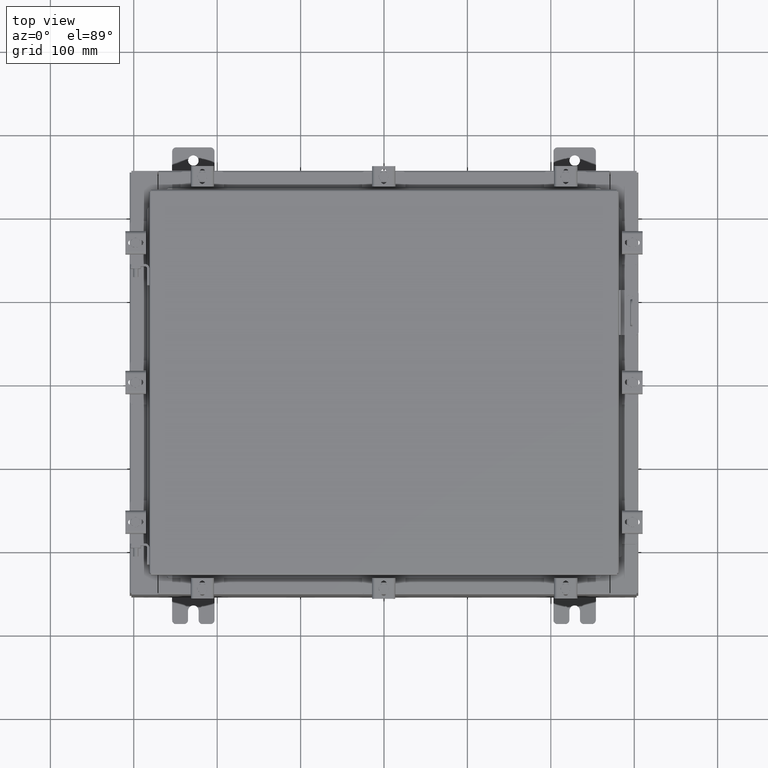
[diagram: clean part render]
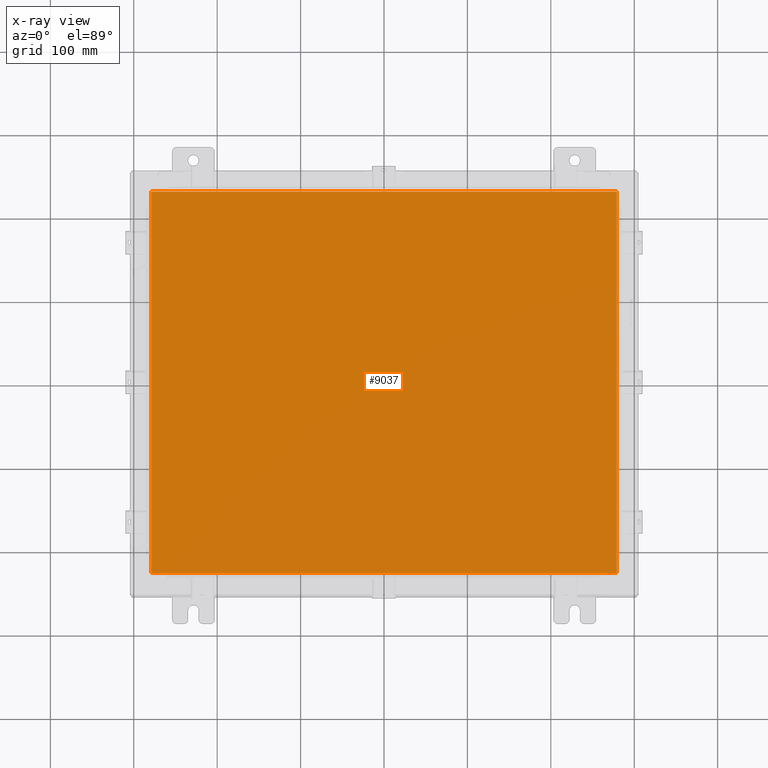
[diagram: x-ray — body ghosted, one internal face saturated and labeled with its STEP entity id]
A machine part, top view, then the same camera in x-ray: the body is ghosted and one INTERNAL B-rep face — a face not visible from any outside direction — is saturated and labeled: STEP entity #9037.
In plain terms, the highlighted planar face has unit normal (0, 0, -1).
Its self-contained STEP definition (entity closure, byte-faithful):
#412 = CARTESIAN_POINT ( 'NONE',  ( -10.99029999999999800, -9.006299999999997800, -0.07470000000000019700 ) ) ;
#685 = CARTESIAN_POINT ( 'NONE',  ( -10.99029999999999800, 9.006299999999999500, -0.07470000000000000300 ) ) ;
#1279 = LINE ( 'NONE', #1643, #14642 ) ;
#1369 = LINE ( 'NONE', #412, #9583 ) ;
#1572 = DIRECTION ( 'NONE',  ( -1.000000000000000000, -0.0000000000000000000, -0.0000000000000000000 ) ) ;
#1643 = CARTESIAN_POINT ( 'NONE',  ( 10.99030000000000100, 9.006300000000001300, -0.07470000000000073800 ) ) ;
#1738 = FACE_OUTER_BOUND ( 'NONE', #1815, .T. ) ;
#1815 = EDGE_LOOP ( 'NONE', ( #21028, #9968, #7653, #13766 ) ) ;
#4233 = CARTESIAN_POINT ( 'NONE',  ( 10.99030000000000100, 9.006300000000001300, -0.07470000000000000300 ) ) ;
#5146 = DIRECTION ( 'NONE',  ( 0.0000000000000000000, 0.0000000000000000000, -1.000000000000000000 ) ) ;
#5280 = VERTEX_POINT ( 'NONE', #5368 ) ;
#5368 = CARTESIAN_POINT ( 'NONE',  ( 10.99030000000000100, -9.006299999999997800, -0.07470000000000000300 ) ) ;
#7653 = ORIENTED_EDGE ( 'NONE', *, *, #14050, .F. ) ;
#9037 = ADVANCED_FACE ( 'NONE', ( #1738 ), #13812, .T. ) ;
#9583 = VECTOR ( 'NONE', #19507, 39.37007874015748100 ) ;
#9968 = ORIENTED_EDGE ( 'NONE', *, *, #11142, .F. ) ;
#10018 = EDGE_CURVE ( 'NONE', #5280, #14082, #12094, .T. ) ;
#10311 = LINE ( 'NONE', #11171, #15436 ) ;
#11142 = EDGE_CURVE ( 'NONE', #18343, #5280, #1369, .T. ) ;
#11171 = CARTESIAN_POINT ( 'NONE',  ( -10.99029999999999800, 9.006300000000001300, -0.07470000000000019700 ) ) ;
#12094 = LINE ( 'NONE', #17974, #20732 ) ;
#13199 = EDGE_CURVE ( 'NONE', #14082, #18586, #1279, .T. ) ;
#13766 = ORIENTED_EDGE ( 'NONE', *, *, #13199, .F. ) ;
#13812 = PLANE ( 'NONE',  #21563 ) ;
#14050 = EDGE_CURVE ( 'NONE', #18586, #18343, #10311, .T. ) ;
#14082 = VERTEX_POINT ( 'NONE', #4233 ) ;
#14642 = VECTOR ( 'NONE', #1572, 39.37007874015748100 ) ;
#15436 = VECTOR ( 'NONE', #21517, 39.37007874015748100 ) ;
#15540 = CARTESIAN_POINT ( 'NONE',  ( 0.0000000000000000000, 0.0000000000000000000, -0.07470000000000000300 ) ) ;
#16174 = DIRECTION ( 'NONE',  ( 0.0000000000000000000, 1.000000000000000000, 0.0000000000000000000 ) ) ;
#17291 = DIRECTION ( 'NONE',  ( -1.000000000000000000, 0.0000000000000000000, -0.0000000000000000000 ) ) ;
#17974 = CARTESIAN_POINT ( 'NONE',  ( 10.99030000000000100, -9.006299999999997800, -0.07470000000000019700 ) ) ;
#18343 = VERTEX_POINT ( 'NONE', #19207 ) ;
#18586 = VERTEX_POINT ( 'NONE', #685 ) ;
#19207 = CARTESIAN_POINT ( 'NONE',  ( -10.99029999999999800, -9.006299999999997800, -0.07470000000000000300 ) ) ;
#19507 = DIRECTION ( 'NONE',  ( 1.000000000000000000, -0.0000000000000000000, -0.0000000000000000000 ) ) ;
#20732 = VECTOR ( 'NONE', #16174, 39.37007874015748100 ) ;
#21028 = ORIENTED_EDGE ( 'NONE', *, *, #10018, .F. ) ;
#21517 = DIRECTION ( 'NONE',  ( 0.0000000000000000000, -1.000000000000000000, 0.0000000000000000000 ) ) ;
#21563 = AXIS2_PLACEMENT_3D ( 'NONE', #15540, #5146, #17291 ) ;